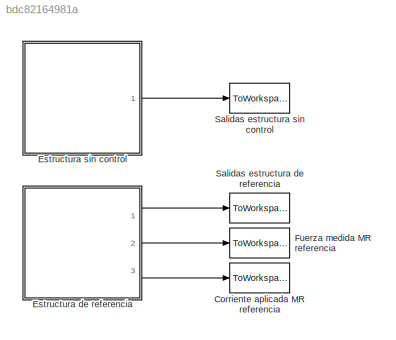
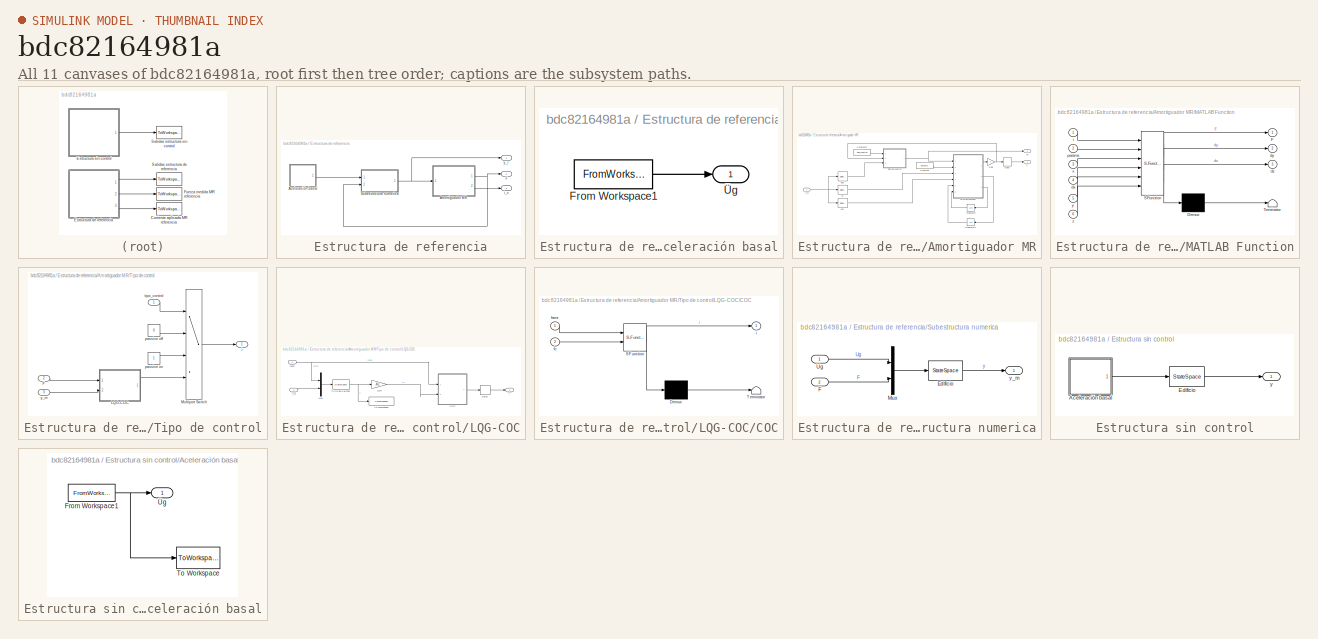
[diagram: thumbnail index - all 11 canvases of the model, root first then tree order]
MODEL slx_bdc82164981a
KIND model
CONFIG AbsTol = auto
CONFIG EnableMultiTasking = off
CONFIG FixedStep = dtsim
CONFIG MaxStep = auto
CONFIG MinStep = auto
CONFIG RelTol = 1e-3
CONFIG SampleTimeConstraint = Unconstrained
CONFIG SolverName = ode4
CONFIG StartTime = 0.0
CONFIG StopTime = ttotal
BLOCK [ToWorkspace] Corriente aplicada MR referencia
  FixptAsFi = on
  MaxDataPoints = inf
  NameLocation = right
  Ports = [1]
  SampleTime = -1
  SaveFormat = Timeseries
  VariableName = ic_r
BLOCK [SubSystem] Estructura de referencia
  Ports = [0, 3]
  RequestExecContextInheritance = off
BLOCK [SubSystem] Estructura de referencia/Aceleración basal
  Ports = [0, 1]
  RequestExecContextInheritance = off
BLOCK [FromWorkspace] Estructura de referencia/Aceleración basal/From Workspace1
  OutputAfterFinalValue = Setting to zero
  VariableName = Ug
BLOCK [Outport] Estructura de referencia/Aceleración basal/Üg
  VectorParamsAs1DForOutWhenUnconnected = off
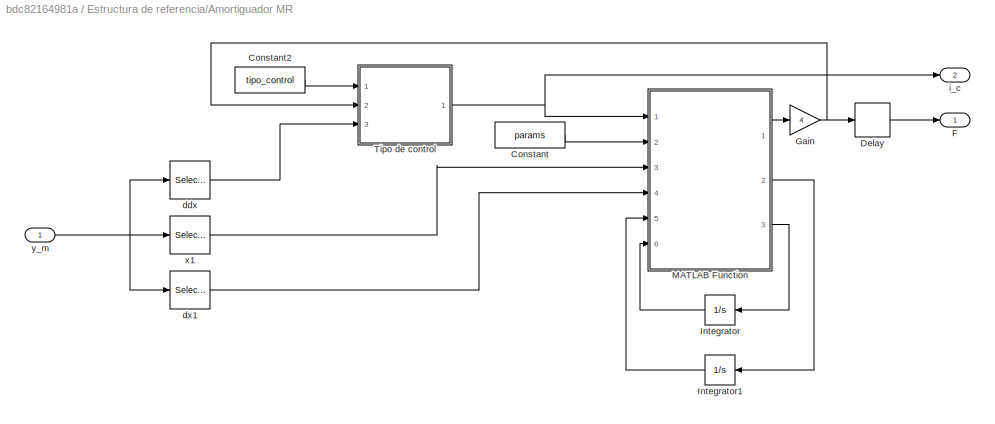
BLOCK [SubSystem] Estructura de referencia/Amortiguador MR
  Ports = [1, 2]
  RequestExecContextInheritance = off
BLOCK [Constant] Estructura de referencia/Amortiguador MR/Constant
  Value = params
BLOCK [Constant] Estructura de referencia/Amortiguador MR/Constant2
  Value = tipo_control
BLOCK [Delay] Estructura de referencia/Amortiguador MR/Delay
  DelayLength = 1
  InitialCondition = 0
  InputPortMap = u0
  Ports = [1, 1]
BLOCK [Outport] Estructura de referencia/Amortiguador MR/F
  NameLocation = top
BLOCK [Gain] Estructura de referencia/Amortiguador MR/Gain
  Gain = 4
BLOCK [Integrator] Estructura de referencia/Amortiguador MR/Integrator
  NameLocation = top
  Ports = [1, 1]
BLOCK [Integrator] Estructura de referencia/Amortiguador MR/Integrator1
  NameLocation = top
  Ports = [1, 1]
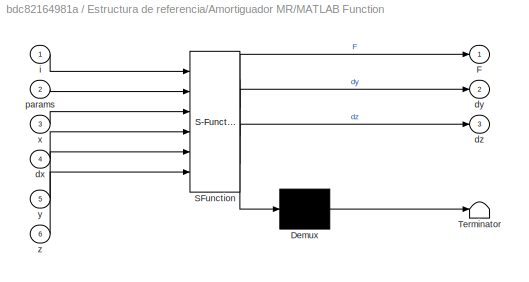
BLOCK [SubSystem] Estructura de referencia/Amortiguador MR/MATLAB Function
  ErrorFcn = Stateflow.Translate.translate
  PermitHierarchicalResolution = ExplicitOnly
  Ports = [6, 3]
  RequestExecContextInheritance = off
  SFBlockType = MATLAB Function
  TreatAsAtomicUnit = on
BLOCK [Demux] Estructura de referencia/Amortiguador MR/MATLAB Function/ Demux 
  Outputs = 1
  Ports = [1, 1]
BLOCK [S-Function] Estructura de referencia/Amortiguador MR/MATLAB Function/ SFunction 
  EnableBusSupport = on
  FunctionName = sf_sfun
  PortCounts = [6 4]
  Ports = [6, 4]
  SFcnIsStateOwnerBlock = off
  SFunctionDeploymentMode = off
  Tag = Stateflow S-Function 2
BLOCK [Terminator] Estructura de referencia/Amortiguador MR/MATLAB Function/ Terminator 
BLOCK [Outport] Estructura de referencia/Amortiguador MR/MATLAB Function/F
BLOCK [Inport] Estructura de referencia/Amortiguador MR/MATLAB Function/dx
  Port = 4
BLOCK [Outport] Estructura de referencia/Amortiguador MR/MATLAB Function/dy
  Port = 2
BLOCK [Outport] Estructura de referencia/Amortiguador MR/MATLAB Function/dz
  Port = 3
BLOCK [Inport] Estructura de referencia/Amortiguador MR/MATLAB Function/i
BLOCK [Inport] Estructura de referencia/Amortiguador MR/MATLAB Function/params
  Port = 2
BLOCK [Inport] Estructura de referencia/Amortiguador MR/MATLAB Function/x
  Port = 3
BLOCK [Inport] Estructura de referencia/Amortiguador MR/MATLAB Function/y
  Port = 5
BLOCK [Inport] Estructura de referencia/Amortiguador MR/MATLAB Function/z
  Port = 6
BLOCK [SubSystem] Estructura de referencia/Amortiguador MR/Tipo de control
  Ports = [3, 1]
  RequestExecContextInheritance = off
BLOCK [Inport] Estructura de referencia/Amortiguador MR/Tipo de control/F
  Port = 2
BLOCK [SubSystem] Estructura de referencia/Amortiguador MR/Tipo de control/LQG-COC
  Ports = [2, 1]
  RequestExecContextInheritance = off
BLOCK [SubSystem] Estructura de referencia/Amortiguador MR/Tipo de control/LQG-COC/COC
  ErrorFcn = Stateflow.Translate.translate
  PermitHierarchicalResolution = ExplicitOnly
  Ports = [2, 1]
  RequestExecContextInheritance = off
  SFBlockType = MATLAB Function
  TreatAsAtomicUnit = on
BLOCK [Demux] Estructura de referencia/Amortiguador MR/Tipo de control/LQG-COC/COC/ Demux 
  Outputs = 1
  Ports = [1, 1]
BLOCK [S-Function] Estructura de referencia/Amortiguador MR/Tipo de control/LQG-COC/COC/ SFunction 
  EnableBusSupport = on
  FunctionName = sf_sfun
  PortCounts = [2 2]
  Ports = [2, 2]
  SFcnIsStateOwnerBlock = off
  SFunctionDeploymentMode = off
  Tag = Stateflow S-Function 1
BLOCK [Terminator] Estructura de referencia/Amortiguador MR/Tipo de control/LQG-COC/COC/ Terminator 
BLOCK [Inport] Estructura de referencia/Amortiguador MR/Tipo de control/LQG-COC/COC/famr
BLOCK [Inport] Estructura de referencia/Amortiguador MR/Tipo de control/LQG-COC/COC/fc
  Port = 2
BLOCK [Outport] Estructura de referencia/Amortiguador MR/Tipo de control/LQG-COC/COC/i
BLOCK [Delay] Estructura de referencia/Amortiguador MR/Tipo de control/LQG-COC/Delay
  DelayLength = 1
  InitialCondition = 0
  InputPortMap = u0
  Ports = [1, 1]
BLOCK [StateSpace] Estructura de referencia/Amortiguador MR/Tipo de control/LQG-COC/Filto de Kalman
  A = sys_kalman.a
  B = sys_kalman.b
  C = sys_kalman.c
  D = sys_kalman.d
  InitialCondition = 0
  Ports = [1, 1]
BLOCK [Gain] Estructura de referencia/Amortiguador MR/Tipo de control/LQG-COC/LQR
  Gain = -Kc
  Multiplication = Matrix(K*u) (u vector)
BLOCK [Mux] Estructura de referencia/Amortiguador MR/Tipo de control/LQG-COC/Mux
  DisplayOption = bar
  Inputs = 2
  Ports = [2, 1]
BLOCK [ToWorkspace] Estructura de referencia/Amortiguador MR/Tipo de control/LQG-COC/To Workspace
  FixptAsFi = on
  MaxDataPoints = inf
  Ports = [1]
  SampleTime = -1
  SaveFormat = Timeseries
  VariableName = x_kalman
BLOCK [Inport] Estructura de referencia/Amortiguador MR/Tipo de control/LQG-COC/famr
BLOCK [Outport] Estructura de referencia/Amortiguador MR/Tipo de control/LQG-COC/i
BLOCK [Inport] Estructura de referencia/Amortiguador MR/Tipo de control/LQG-COC/y_m
  Port = 2
BLOCK [MultiPortSwitch] Estructura de referencia/Amortiguador MR/Tipo de control/Multiport Switch
  InputSameDT = off
  Ports = [4, 1]
  SaturateOnIntegerOverflow = off
BLOCK [Outport] Estructura de referencia/Amortiguador MR/Tipo de control/i
BLOCK [Constant] Estructura de referencia/Amortiguador MR/Tipo de control/passive off
  Value = 0
BLOCK [Constant] Estructura de referencia/Amortiguador MR/Tipo de control/passive on
BLOCK [Inport] Estructura de referencia/Amortiguador MR/Tipo de control/tipo_control
BLOCK [Inport] Estructura de referencia/Amortiguador MR/Tipo de control/y_m
  Port = 3
BLOCK [Selector] Estructura de referencia/Amortiguador MR/ddx
  IndexOptions = Index vector (dialog)
  Indices = 7:9
  InputPortWidth = 9
  OutputSizes = 1
  Ports = [1, 1]
BLOCK [Selector] Estructura de referencia/Amortiguador MR/dx1
  IndexOptions = Index vector (dialog)
  Indices = 4
  InputPortWidth = 9
  OutputSizes = 1
  Ports = [1, 1]
BLOCK [Outport] Estructura de referencia/Amortiguador MR/i_c
  NameLocation = top
  Port = 2
BLOCK [Selector] Estructura de referencia/Amortiguador MR/x1
  IndexOptions = Index vector (dialog)
  Indices = [1]
  InputPortWidth = 9
  OutputSizes = 1
  Ports = [1, 1]
BLOCK [Inport] Estructura de referencia/Amortiguador MR/y_m
  NameLocation = top
BLOCK [Outport] Estructura de referencia/F
  NameLocation = right
  Port = 2
  VectorParamsAs1DForOutWhenUnconnected = off
BLOCK [SubSystem] Estructura de referencia/Subestructura numerica
  Ports = [2, 1]
  RequestExecContextInheritance = off
BLOCK [StateSpace] Estructura de referencia/Subestructura numerica/Edificio
  A = Edificio.A
  B = Edificio.B
  C = Edificio.C
  D = Edificio.D
  InitialCondition = 0
  Ports = [1, 1]
BLOCK [Inport] Estructura de referencia/Subestructura numerica/F 
  Port = 2
BLOCK [Mux] Estructura de referencia/Subestructura numerica/Mux
  DisplayOption = bar
  Inputs = 2
  Ports = [2, 1]
BLOCK [Inport] Estructura de referencia/Subestructura numerica/Ug
BLOCK [Outport] Estructura de referencia/Subestructura numerica/y_m
BLOCK [Outport] Estructura de referencia/i_c
  NameLocation = right
  Port = 3
  VectorParamsAs1DForOutWhenUnconnected = off
BLOCK [Outport] Estructura de referencia/y_r
  NameLocation = right
  VectorParamsAs1DForOutWhenUnconnected = off
BLOCK [SubSystem] Estructura sin control
  Ports = [0, 1]
  RequestExecContextInheritance = off
BLOCK [SubSystem] Estructura sin control/Aceleración basal
  Ports = [0, 1]
  RequestExecContextInheritance = off
BLOCK [FromWorkspace] Estructura sin control/Aceleración basal/From Workspace1
  OutputAfterFinalValue = Setting to zero
  VariableName = Ug
BLOCK [ToWorkspace] Estructura sin control/Aceleración basal/To Workspace
  FixptAsFi = on
  MaxDataPoints = inf
  Ports = [1]
  SampleTime = -1
  SaveFormat = Timeseries
  VariableName = Ugs
BLOCK [Outport] Estructura sin control/Aceleración basal/Üg
  VectorParamsAs1DForOutWhenUnconnected = off
BLOCK [StateSpace] Estructura sin control/Edificio
  A = Edificio(:,1).A
  B = Edificio(:,1).B
  C = Edificio(:,1).C
  D = Edificio(:,1).D
  InitialCondition = 0
  Ports = [1, 1]
BLOCK [Outport] Estructura sin control/y
  VectorParamsAs1DForOutWhenUnconnected = off
BLOCK [ToWorkspace] Fuerza medida MR referencia
  FixptAsFi = on
  MaxDataPoints = inf
  NameLocation = right
  Ports = [1]
  SampleTime = -1
  SaveFormat = Timeseries
  VariableName = F_r
BLOCK [ToWorkspace] Salidas estructura de referencia
  FixptAsFi = on
  MaxDataPoints = inf
  NameLocation = right
  Ports = [1]
  SampleTime = -1
  SaveFormat = Timeseries
  VariableName = y_r
BLOCK [ToWorkspace] Salidas estructura sin control
  FixptAsFi = on
  MaxDataPoints = inf
  NameLocation = right
  Ports = [1]
  SampleTime = -1
  SaveFormat = Timeseries
  VariableName = y_sc
ANNOTATION Estructura de referencia/Amortiguador MR/Tipo de control/LQG-COC: LQG
LINE Estructura de referencia/Aceleración basal/From Workspace1:1 -> Estructura de referencia/Aceleración basal/Üg:1
LINE Estructura de referencia/Aceleración basal:1 -> Estructura de referencia/Subestructura numerica:1
LINE Estructura de referencia/Amortiguador MR/Constant2:1 -> Estructura de referencia/Amortiguador MR/Tipo de control:1
LINE Estructura de referencia/Amortiguador MR/Constant:1 -> Estructura de referencia/Amortiguador MR/MATLAB Function:2
LINE Estructura de referencia/Amortiguador MR/Delay:1 -> Estructura de referencia/Amortiguador MR/F:1
NET Estructura de referencia/Amortiguador MR/Gain:1 -> Estructura de referencia/Amortiguador MR/Delay:1, Estructura de referencia/Amortiguador MR/Tipo de control:2
LINE Estructura de referencia/Amortiguador MR/Integrator1:1 -> Estructura de referencia/Amortiguador MR/MATLAB Function:5
LINE Estructura de referencia/Amortiguador MR/Integrator:1 -> Estructura de referencia/Amortiguador MR/MATLAB Function:6
LINE Estructura de referencia/Amortiguador MR/MATLAB Function:1 -> Estructura de referencia/Amortiguador MR/Gain:1
LINE Estructura de referencia/Amortiguador MR/MATLAB Function:2 -> Estructura de referencia/Amortiguador MR/Integrator1:1
LINE Estructura de referencia/Amortiguador MR/MATLAB Function:3 -> Estructura de referencia/Amortiguador MR/Integrator:1
LINE Estructura de referencia/Amortiguador MR/Tipo de control/F:1 -> Estructura de referencia/Amortiguador MR/Tipo de control/LQG-COC:1
LINE Estructura de referencia/Amortiguador MR/Tipo de control/LQG-COC/COC:1 -> Estructura de referencia/Amortiguador MR/Tipo de control/LQG-COC/Delay:1
LINE Estructura de referencia/Amortiguador MR/Tipo de control/LQG-COC/Delay:1 -> Estructura de referencia/Amortiguador MR/Tipo de control/LQG-COC/i:1
NET Estructura de referencia/Amortiguador MR/Tipo de control/LQG-COC/Filto de Kalman:1 -> Estructura de referencia/Amortiguador MR/Tipo de control/LQG-COC/LQR:1, Estructura de referencia/Amortiguador MR/Tipo de control/LQG-COC/To Workspace:1
LINE Estructura de referencia/Amortiguador MR/Tipo de control/LQG-COC/LQR:1 -> Estructura de referencia/Amortiguador MR/Tipo de control/LQG-COC/COC:2
LINE Estructura de referencia/Amortiguador MR/Tipo de control/LQG-COC/Mux:1 -> Estructura de referencia/Amortiguador MR/Tipo de control/LQG-COC/Filto de Kalman:1
NET Estructura de referencia/Amortiguador MR/Tipo de control/LQG-COC/famr:1 -> Estructura de referencia/Amortiguador MR/Tipo de control/LQG-COC/COC:1, Estructura de referencia/Amortiguador MR/Tipo de control/LQG-COC/Mux:1
LINE Estructura de referencia/Amortiguador MR/Tipo de control/LQG-COC/y_m:1 -> Estructura de referencia/Amortiguador MR/Tipo de control/LQG-COC/Mux:2
LINE Estructura de referencia/Amortiguador MR/Tipo de control/LQG-COC:1 -> Estructura de referencia/Amortiguador MR/Tipo de control/Multiport Switch:4
LINE Estructura de referencia/Amortiguador MR/Tipo de control/Multiport Switch:1 -> Estructura de referencia/Amortiguador MR/Tipo de control/i:1
LINE Estructura de referencia/Amortiguador MR/Tipo de control/passive off:1 -> Estructura de referencia/Amortiguador MR/Tipo de control/Multiport Switch:2
LINE Estructura de referencia/Amortiguador MR/Tipo de control/passive on:1 -> Estructura de referencia/Amortiguador MR/Tipo de control/Multiport Switch:3
LINE Estructura de referencia/Amortiguador MR/Tipo de control/tipo_control:1 -> Estructura de referencia/Amortiguador MR/Tipo de control/Multiport Switch:1
LINE Estructura de referencia/Amortiguador MR/Tipo de control/y_m:1 -> Estructura de referencia/Amortiguador MR/Tipo de control/LQG-COC:2
NET Estructura de referencia/Amortiguador MR/Tipo de control:1 -> Estructura de referencia/Amortiguador MR/MATLAB Function:1, Estructura de referencia/Amortiguador MR/i_c:1
LINE Estructura de referencia/Amortiguador MR/ddx:1 -> Estructura de referencia/Amortiguador MR/Tipo de control:3
LINE Estructura de referencia/Amortiguador MR/dx1:1 -> Estructura de referencia/Amortiguador MR/MATLAB Function:4
LINE Estructura de referencia/Amortiguador MR/x1:1 -> Estructura de referencia/Amortiguador MR/MATLAB Function:3
NET Estructura de referencia/Amortiguador MR/y_m:1 -> Estructura de referencia/Amortiguador MR/ddx:1, Estructura de referencia/Amortiguador MR/dx1:1, Estructura de referencia/Amortiguador MR/x1:1
NET Estructura de referencia/Amortiguador MR:1 -> Estructura de referencia/F:1, Estructura de referencia/Subestructura numerica:2
LINE Estructura de referencia/Amortiguador MR:2 -> Estructura de referencia/i_c:1
LINE Estructura de referencia/Subestructura numerica/Edificio:1 -> Estructura de referencia/Subestructura numerica/y_m:1
LINE Estructura de referencia/Subestructura numerica/F :1 -> Estructura de referencia/Subestructura numerica/Mux:2
LINE Estructura de referencia/Subestructura numerica/Mux:1 -> Estructura de referencia/Subestructura numerica/Edificio:1
LINE Estructura de referencia/Subestructura numerica/Ug:1 -> Estructura de referencia/Subestructura numerica/Mux:1
NET Estructura de referencia/Subestructura numerica:1 -> Estructura de referencia/Amortiguador MR:1, Estructura de referencia/y_r:1
LINE Estructura de referencia:1 -> Salidas estructura de referencia:1
LINE Estructura de referencia:2 -> Fuerza medida MR referencia:1
LINE Estructura de referencia:3 -> Corriente aplicada MR referencia:1
NET Estructura sin control/Aceleración basal/From Workspace1:1 -> Estructura sin control/Aceleración basal/To Workspace:1, Estructura sin control/Aceleración basal/Üg:1
LINE Estructura sin control/Aceleración basal:1 -> Estructura sin control/Edificio:1
LINE Estructura sin control/Edificio:1 -> Estructura sin control/y:1
LINE Estructura sin control:1 -> Salidas estructura sin control:1
note: NET lines group one-source signal fan-out (src -> all destinations, sorted); 1:1 wires keep LINE
CHART Estructura de referencia/Amortiguador MR/Tipo de control/LQG-COC/COC states=1 transitions=1
  STATE_LABEL 'eML_blk_kernel()'
  STATE_LABEL 'SCRIPT:\nfunction i = fcn(famr,fc)\nif abs(fc)>abs(famr)\n    i = 1;\nelse\n    i = 0;\nend\n'
CHART Estructura de referencia/Amortiguador MR/MATLAB Function states=1 transitions=1
  STATE_LABEL 'eML_blk_kernel()'
  STATE_LABEL 'SCRIPT:\nfunction [F,dy,dz] = fcn(i,params,x,dx,y,z)\n    A = 300;   \n    n = 2;   \n    k0 = params(1);\n    k1 = params(2);\n    x0 = params(3);\n    alpha = params(4)*i^2+params(5)*i+params(6);\n    gamma = params(7)*exp(params(8)*i);\n    beta = gamma;\n    c0 = params(9)*i+params(10);\n    c1 = params(11)*i+params(12);\n\n    x = x*1000; % el modelo está en mm N\n    dx = dx*1000;\n    dy = 1/(c0+c1)*(alph...<+134ch>'
CHART  states=0 transitions=0
CHART  states=0 transitions=0
